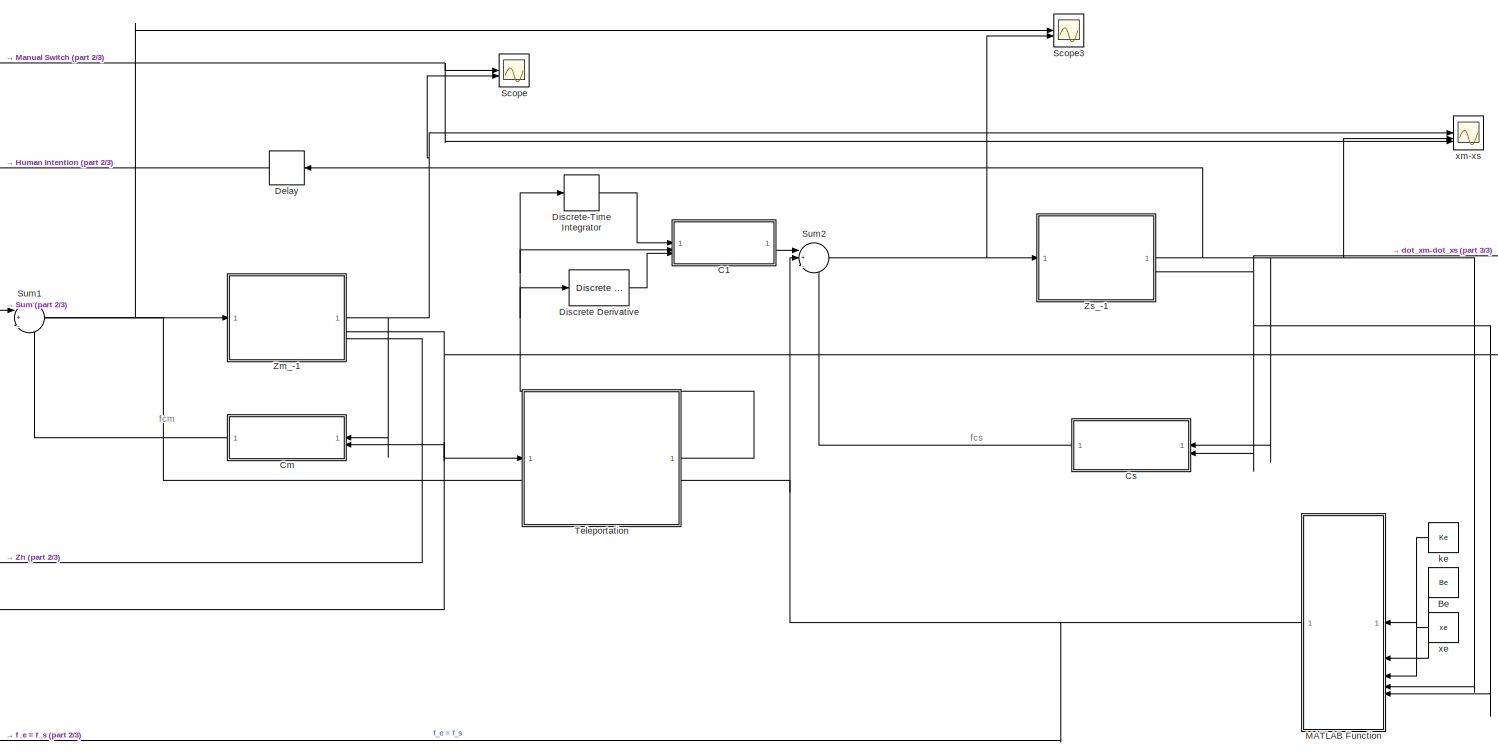
[diagram: root canvas - part 1/3, center side, full height]
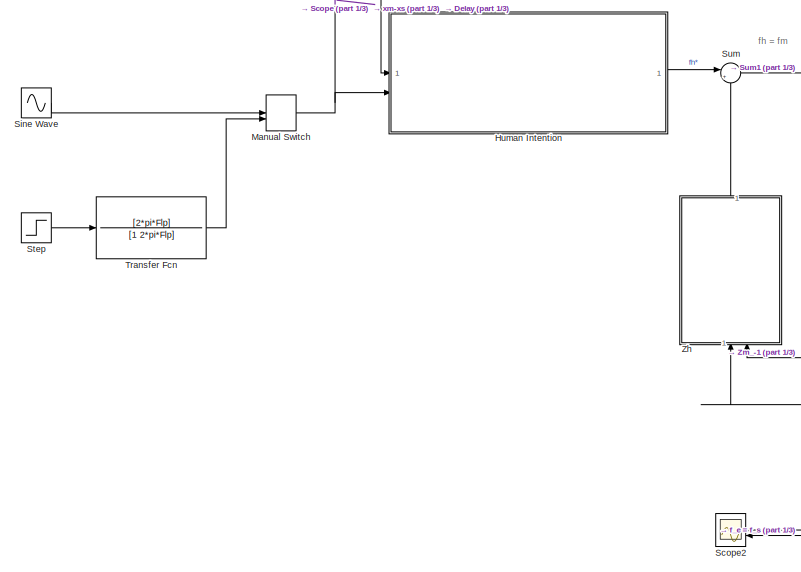
[diagram: root canvas - part 2/3, middle left region]
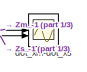
[diagram: root canvas - part 3/3, middle right region]
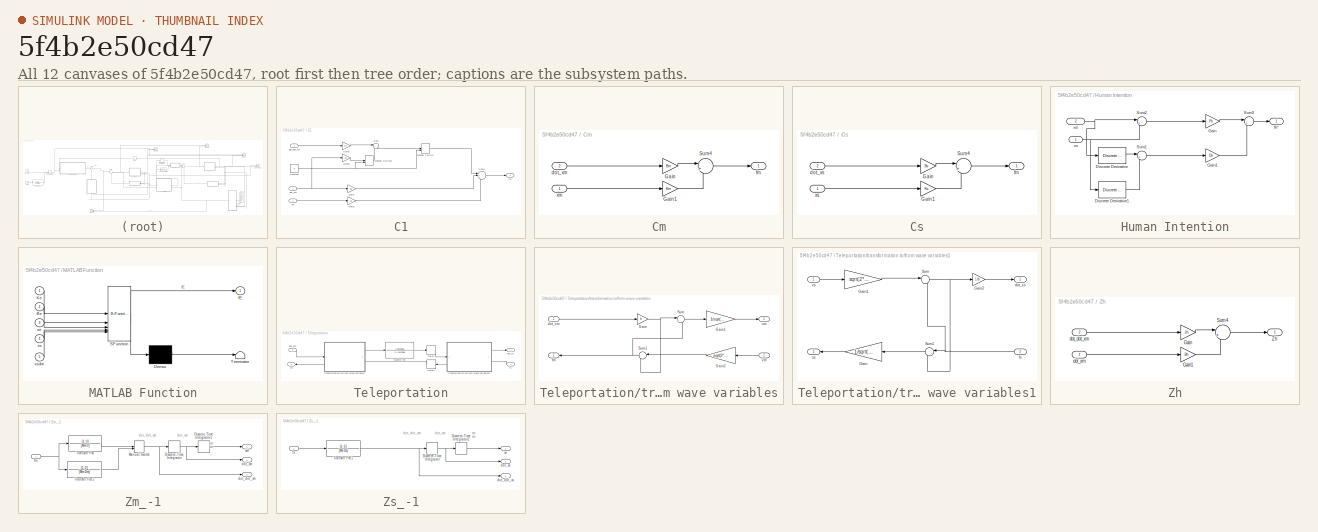
[diagram: thumbnail index - all 12 canvases of the model, root first then tree order]
MODEL slx_5f4b2e50cd47
KIND model
CONFIG AbsTol = auto
CONFIG EnableMultiTasking = off
CONFIG FixedStep = auto
CONFIG MaxStep = auto
CONFIG MinStep = auto
CONFIG RelTol = 1e-3
CONFIG SampleTimeConstraint = Unconstrained
CONFIG SolverName = VariableStepAuto
CONFIG StartTime = 0.0
CONFIG StopTime = 10
BLOCK [Constant] Be
  Value = Be
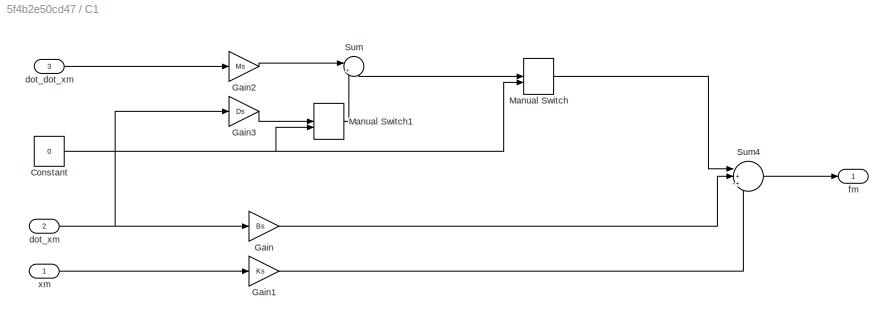
BLOCK [SubSystem] C1
BLOCK [Constant] C1/Constant
  Value = 0
BLOCK [Gain] C1/Gain
  Gain = Bs
BLOCK [Gain] C1/Gain1
  Gain = Ks
BLOCK [Gain] C1/Gain2
  Gain = Ms
BLOCK [Gain] C1/Gain3
  Gain = Ds
BLOCK [ManualSwitch] C1/Manual Switch
  CurrentSetting = 0
BLOCK [ManualSwitch] C1/Manual Switch1
  CurrentSetting = 0
BLOCK [Sum] C1/Sum
  Inputs = |++
BLOCK [Sum] C1/Sum4
  Inputs = |+++
BLOCK [Inport] C1/dot_dot_xm
  Port = 3
BLOCK [Inport] C1/dot_xm
  Port = 2
BLOCK [Outport] C1/fm
BLOCK [Inport] C1/xm
BLOCK [SubSystem] Cm
BLOCK [Gain] Cm/Gain
  Gain = Bm
BLOCK [Gain] Cm/Gain1
  Gain = Km
BLOCK [Sum] Cm/Sum4
  Inputs = |++
BLOCK [Inport] Cm/dot_xm
  Port = 2
BLOCK [Outport] Cm/fm
BLOCK [Inport] Cm/xm
BLOCK [SubSystem] Cs
BLOCK [Gain] Cs/Gain
  Gain = Bs
BLOCK [Gain] Cs/Gain1
  Gain = Ks
BLOCK [Sum] Cs/Sum4
  Inputs = |++
BLOCK [Inport] Cs/dot_xs
  Port = 2
BLOCK [Outport] Cs/fm
BLOCK [Inport] Cs/xs
BLOCK [Delay] Delay
  DelayLength = delay
  InputPortMap = u0
  SampleTime = Ts
BLOCK [Reference] Discrete Derivative  REF=simulink/Discrete/Discrete Derivative
  SourceBlock = simulink/Discrete/Discrete Derivative
  SourceType = Discrete Derivative
BLOCK [DiscreteIntegrator] Discrete-Time Integrator
  ICPrevOutput = DiscIntNeverNeededParam
  ICPrevScaledInput = DiscIntNeverNeededParam
  InitialConditionSetting = Auto
  SampleTime = Ts
BLOCK [SubSystem] Human Intention
BLOCK [Reference] Human Intention/Discrete Derivative  REF=simulink/Discrete/Discrete Derivative
  SourceBlock = simulink/Discrete/Discrete Derivative
  SourceType = Discrete Derivative
BLOCK [Reference] Human Intention/Discrete Derivative1  REF=simulink/Discrete/Discrete Derivative
  SourceBlock = simulink/Discrete/Discrete Derivative
  SourceType = Discrete Derivative
BLOCK [Gain] Human Intention/Gain
  Gain = Ph
BLOCK [Gain] Human Intention/Gain1
  Gain = Dh
BLOCK [Sum] Human Intention/Sum1
  Inputs = |+-
BLOCK [Sum] Human Intention/Sum2
  Inputs = |+-
BLOCK [Sum] Human Intention/Sum3
  Inputs = |++
BLOCK [Outport] Human Intention/fh*
BLOCK [Inport] Human Intention/xd
  Port = 2
BLOCK [Inport] Human Intention/xs
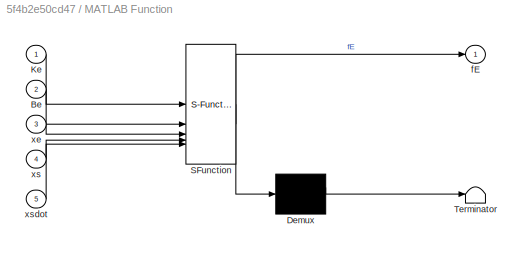
BLOCK [SubSystem] MATLAB Function
  ErrorFcn = Stateflow.Translate.translate
  PermitHierarchicalResolution = ExplicitOnly
  SFBlockType = MATLAB Function
  TreatAsAtomicUnit = on
BLOCK [Demux] MATLAB Function/ Demux 
  Outputs = 1
BLOCK [S-Function] MATLAB Function/ SFunction 
  EnableBusSupport = on
  FunctionName = sf_sfun
  PortCounts = [5 2]
  SFcnIsStateOwnerBlock = off
  SFunctionDeploymentMode = off
  Tag = Stateflow S-Function 2
BLOCK [Terminator] MATLAB Function/ Terminator 
BLOCK [Inport] MATLAB Function/Be
  Port = 2
BLOCK [Inport] MATLAB Function/Ke
BLOCK [Outport] MATLAB Function/fE
BLOCK [Inport] MATLAB Function/xe
  Port = 3
BLOCK [Inport] MATLAB Function/xs
  Port = 4
BLOCK [Inport] MATLAB Function/xsdot
  Port = 5
BLOCK [ManualSwitch] Manual Switch
BLOCK [Scope] Scope
  Floating = off
  NumInputPorts = 2
  ScopeSpecificationString = Simulink.scopes.TimeScopeBlockCfg('CurrentConfiguration', extmgr.ConfigurationSet(extmgr.Configuration('Core','General UI',true),extmgr.Configuration('Core','Source UI',true),extmgr.Configuration('Sources','WiredSimulink',true),extmgr.Configuration('Visuals','Time Domain',true,'SerializedDisplays',{struct('MinYLimReal','-33.14001','MaxYLimReal','31.45996','YLabelReal','','MinYLimMag','0.00000','Ma...<+1513ch>
BLOCK [Scope] Scope2
  Floating = off
  NumInputPorts = 2
  ScopeSpecificationString = Simulink.scopes.TimeScopeBlockCfg('CurrentConfiguration', extmgr.ConfigurationSet(extmgr.Configuration('Core','General UI',true),extmgr.Configuration('Core','Source UI',true),extmgr.Configuration('Sources','WiredSimulink',true,'DataLoggingVariableName','ScopeData2'),extmgr.Configuration('Visuals','Time Domain',true,'SerializedDisplays',{struct('MinYLimReal','-1397.25975','MaxYLimReal','2548.93573'...<+1594ch>
BLOCK [Scope] Scope3
  Floating = off
  NumInputPorts = 2
  ScopeSpecificationString = Simulink.scopes.TimeScopeBlockCfg('CurrentConfiguration', extmgr.ConfigurationSet(extmgr.Configuration('Core','General UI',true),extmgr.Configuration('Core','Source UI',true),extmgr.Configuration('Sources','WiredSimulink',true,'DataLoggingVariableName','ScopeData1'),extmgr.Configuration('Visuals','Time Domain',true,'SerializedDisplays',{struct('MinYLimReal','-20349.54623','MaxYLimReal','7846.10159...<+1574ch>
BLOCK [Sin] Sine Wave
  Amplitude = Amp
  Frequency = 2*pi*Fc
  SampleTime = Ts
BLOCK [Step] Step
  After = Amp
  SampleTime = Ts
  Time = 0.5
BLOCK [Sum] Sum
  Inputs = |+-
BLOCK [Sum] Sum1
  Inputs = |+--
BLOCK [Sum] Sum2
  Inputs = |+--
BLOCK [SubSystem] Teleportation
  PortSchema = {"entries":[{"content":{"sides":[{"content":{"connectorIds":["In1","Out2"]},"type":"ConnectorPlacement.EquallySpacedRectSide","uuid":"b5f7abc7-c75d-4363-a17a-8f86c90608cd"},{"content":{"connectorIds":["Out1","In2"],"side":"RIGHT"},"type":"ConnectorPlacement.EquallySpacedRectSide","uuid":"2ed87bee-e320-4c73-a1d3-1960a55b558d"},{"content":{"connectorIds":[],"side":"TOP"},"type":"ConnectorPlacement.E...<+253ch>  <repeated x3 — deduplicated; at blocks: Teleportation, transformation to/from wave variables, transformation to/from wave variables1>
BLOCK [Delay] Teleportation/Delay
  DelayLength = delay
  InputPortMap = u0
  SampleTime = Ts
BLOCK [Delay] Teleportation/Delay1
  DelayLength = delay
  InputPortMap = u0
  SampleTime = Ts
BLOCK [TransferFcn] Teleportation/Transfer Fcn
  Denominator = [1 lambda]
  Numerator = [lambda]
BLOCK [Inport] Teleportation/dot_xm
BLOCK [Outport] Teleportation/dot_xs
BLOCK [Outport] Teleportation/fm
  Port = 2
BLOCK [Inport] Teleportation/fs
  Port = 2
BLOCK [SubSystem] Teleportation/transformation to//from wave variables
BLOCK [Gain] Teleportation/transformation to//from wave variables/Gain
  Gain = b
BLOCK [Gain] Teleportation/transformation to//from wave variables/Gain1
  Gain = 1/sqrt(2*b)
BLOCK [Gain] Teleportation/transformation to//from wave variables/Gain2
  Gain = sqrt(2*b)
BLOCK [Sum] Teleportation/transformation to//from wave variables/Sum
  Inputs = |++
BLOCK [Sum] Teleportation/transformation to//from wave variables/Sum1
  Inputs = |++
BLOCK [Inport] Teleportation/transformation to//from wave variables/dot_xm
BLOCK [Outport] Teleportation/transformation to//from wave variables/fm
  Port = 2
BLOCK [Outport] Teleportation/transformation to//from wave variables/um
BLOCK [Inport] Teleportation/transformation to//from wave variables/vm
  Port = 2
BLOCK [SubSystem] Teleportation/transformation to//from wave variables1
BLOCK [Gain] Teleportation/transformation to//from wave variables1/Gain
  Gain = 1/sqrt(2*b)
BLOCK [Gain] Teleportation/transformation to//from wave variables1/Gain1
  Gain = sqrt(2*b)
BLOCK [Gain] Teleportation/transformation to//from wave variables1/Gain2
  Gain = 1/b
BLOCK [Sum] Teleportation/transformation to//from wave variables1/Sum
  Inputs = |+-
BLOCK [Sum] Teleportation/transformation to//from wave variables1/Sum1
  Inputs = |+-
BLOCK [Outport] Teleportation/transformation to//from wave variables1/dot_xs
BLOCK [Inport] Teleportation/transformation to//from wave variables1/fs
  Port = 2
BLOCK [Outport] Teleportation/transformation to//from wave variables1/us
  Port = 2
BLOCK [Inport] Teleportation/transformation to//from wave variables1/vs
BLOCK [TransferFcn] Transfer Fcn
  Denominator = [1 2*pi*Flp]
  Numerator = [2*pi*Flp]
BLOCK [SubSystem] Zh
  NameLocation = right
BLOCK [Gain] Zh/Gain
  Gain = Jh
BLOCK [Gain] Zh/Gain1
  Gain = Bh
BLOCK [Sum] Zh/Sum4
  Inputs = |++
BLOCK [Outport] Zh/Zh
BLOCK [Inport] Zh/dot_dot_xm
  Port = 2
BLOCK [Inport] Zh/dot_xm
BLOCK [SubSystem] Zm_-1
BLOCK [DiscreteIntegrator] Zm_-1/Discrete-Time Integrator
  ICPrevOutput = DiscIntNeverNeededParam
  ICPrevScaledInput = DiscIntNeverNeededParam
  InitialConditionSetting = Auto
  SampleTime = Ts
BLOCK [DiscreteIntegrator] Zm_-1/Discrete-Time Integrator1
  ICPrevOutput = DiscIntNeverNeededParam
  ICPrevScaledInput = DiscIntNeverNeededParam
  InitialConditionSetting = Auto
  SampleTime = Ts
BLOCK [ManualSwitch] Zm_-1/Manual Switch
  CurrentSetting = 0
BLOCK [TransferFcn] Zm_-1/Transfer Fcn
  Denominator = [Mm 0]
  Numerator = [1 0]
BLOCK [TransferFcn] Zm_-1/Transfer Fcn1
  Denominator = [Mm Dm]
  Numerator = [1 0]
BLOCK [Outport] Zm_-1/dot_dot_xm
  Port = 3
BLOCK [Outport] Zm_-1/dot_xm
  Port = 2
BLOCK [Inport] Zm_-1/fm
BLOCK [Outport] Zm_-1/xm
BLOCK [SubSystem] Zs_-1
BLOCK [DiscreteIntegrator] Zs_-1/Discrete-Time Integrator
  ICPrevOutput = DiscIntNeverNeededParam
  ICPrevScaledInput = DiscIntNeverNeededParam
  InitialConditionSetting = Auto
  SampleTime = Ts
BLOCK [DiscreteIntegrator] Zs_-1/Discrete-Time Integrator1
  ICPrevOutput = DiscIntNeverNeededParam
  ICPrevScaledInput = DiscIntNeverNeededParam
  InitialConditionSetting = Auto
  SampleTime = Ts
BLOCK [TransferFcn] Zs_-1/Transfer Fcn1
  Denominator = [Ms Ds]
  Numerator = [1 0]
BLOCK [Outport] Zs_-1/dot_dot_xs
  Port = 3
BLOCK [Outport] Zs_-1/dot_xs
  Port = 2
BLOCK [Inport] Zs_-1/fs
BLOCK [Outport] Zs_-1/xs
BLOCK [Scope] dot_xm-dot_xs
  Floating = off
  NumInputPorts = 2
  ScopeSpecificationString = Simulink.scopes.TimeScopeBlockCfg('CurrentConfiguration', extmgr.ConfigurationSet(extmgr.Configuration('Core','General UI',true),extmgr.Configuration('Core','Source UI',true),extmgr.Configuration('Sources','WiredSimulink',true,'DataLoggingVariableName','ScopeData1'),extmgr.Configuration('Visuals','Time Domain',true,'SerializedDisplays',{struct('MinYLimReal','-51.23114','MaxYLimReal','51.43822','YL...<+1600ch>
BLOCK [Constant] ke
  Value = Ke
BLOCK [Constant] xe
  Value = xe
BLOCK [Scope] xm-xs
  Floating = off
  NumInputPorts = 3
  ScopeSpecificationString = Simulink.scopes.TimeScopeBlockCfg('CurrentConfiguration', extmgr.ConfigurationSet(extmgr.Configuration('Core','General UI',true),extmgr.Configuration('Core','Source UI',true),extmgr.Configuration('Sources','WiredSimulink',true,'DataLoggingVariableName','ScopeData1'),extmgr.Configuration('Visuals','Time Domain',true,'SerializedDisplays',{struct('MinYLimReal','-18.75','MaxYLimReal','18.75','YLabelRe...<+1737ch>
ANNOTATION (root): fcm
ANNOTATION (root): fcs
ANNOTATION (root): fh = fm
ANNOTATION Zm_-1: dot_dot_xm
ANNOTATION Zm_-1: dot_xm
ANNOTATION Zm_-1: xm xm
ANNOTATION Zs_-1: dot_dot_xm
ANNOTATION Zs_-1: dot_xm
ANNOTATION Zs_-1: xm xm
LINE Be:1 -> MATLAB Function:2
NET C1/Constant:1 -> C1/Manual Switch1:2, C1/Manual Switch:2
LINE C1/Gain1:1 -> C1/Sum4:3
LINE C1/Gain2:1 -> C1/Sum:1
LINE C1/Gain3:1 -> C1/Manual Switch1:1
LINE C1/Gain:1 -> C1/Sum4:2
LINE C1/Manual Switch1:1 -> C1/Sum:2
LINE C1/Manual Switch:1 -> C1/Sum4:1
LINE C1/Sum4:1 -> C1/fm:1
LINE C1/Sum:1 -> C1/Manual Switch:1
LINE C1/dot_dot_xm:1 -> C1/Gain2:1
NET C1/dot_xm:1 -> C1/Gain3:1, C1/Gain:1
LINE C1/xm:1 -> C1/Gain1:1
LINE C1:1 -> Sum2:1
LINE Cm/Gain1:1 -> Cm/Sum4:2
LINE Cm/Gain:1 -> Cm/Sum4:1
LINE Cm/Sum4:1 -> Cm/fm:1
LINE Cm/dot_xm:1 -> Cm/Gain:1
LINE Cm/xm:1 -> Cm/Gain1:1
LINE Cm:1 -> Sum1:3
LINE Cs/Gain1:1 -> Cs/Sum4:2
LINE Cs/Gain:1 -> Cs/Sum4:1
LINE Cs/Sum4:1 -> Cs/fm:1
LINE Cs/dot_xs:1 -> Cs/Gain:1
LINE Cs/xs:1 -> Cs/Gain1:1
LINE Cs:1 -> Sum2:3
LINE Delay:1 -> Human Intention:1
LINE Discrete Derivative:1 -> C1:3
LINE Discrete-Time Integrator:1 -> C1:1
LINE Human Intention/Discrete Derivative1:1 -> Human Intention/Sum1:2
LINE Human Intention/Discrete Derivative:1 -> Human Intention/Sum1:1
LINE Human Intention/Gain1:1 -> Human Intention/Sum3:2
LINE Human Intention/Gain:1 -> Human Intention/Sum3:1
LINE Human Intention/Sum1:1 -> Human Intention/Gain1:1
LINE Human Intention/Sum2:1 -> Human Intention/Gain:1
LINE Human Intention/Sum3:1 -> Human Intention/fh*:1
NET Human Intention/xd:1 -> Human Intention/Discrete Derivative:1, Human Intention/Sum2:1
NET Human Intention/xs:1 -> Human Intention/Discrete Derivative1:1, Human Intention/Sum2:2
LINE Human Intention:1 -> Sum:1
NET MATLAB Function:1 -> Scope2:2, Sum2:2, Teleportation:2
NET Manual Switch:1 -> Human Intention:2, Scope:1, xm-xs:3
LINE Sine Wave:1 -> Manual Switch:1
LINE Step:1 -> Transfer Fcn:1
NET Sum1:1 -> Scope3:1, Zm_-1:1
NET Sum2:1 -> Scope3:2, Zs_-1:1
NET Sum:1 -> Scope2:1, Sum1:1
LINE Teleportation/Delay1:1 -> Teleportation/transformation to//from wave variables:2
LINE Teleportation/Delay:1 -> Teleportation/transformation to//from wave variables1:1
LINE Teleportation/Transfer Fcn:1 -> Teleportation/Delay:1
LINE Teleportation/dot_xm:1 -> Teleportation/transformation to//from wave variables:1
LINE Teleportation/fs:1 -> Teleportation/transformation to//from wave variables1:2
LINE Teleportation/transformation to//from wave variables/Gain1:1 -> Teleportation/transformation to//from wave variables/um:1
LINE Teleportation/transformation to//from wave variables/Gain2:1 -> Teleportation/transformation to//from wave variables/Sum1:1
NET Teleportation/transformation to//from wave variables/Gain:1 -> Teleportation/transformation to//from wave variables/Sum1:2, Teleportation/transformation to//from wave variables/Sum:1
NET Teleportation/transformation to//from wave variables/Sum1:1 -> Teleportation/transformation to//from wave variables/Sum:2, Teleportation/transformation to//from wave variables/fm:1
LINE Teleportation/transformation to//from wave variables/Sum:1 -> Teleportation/transformation to//from wave variables/Gain1:1
LINE Teleportation/transformation to//from wave variables/dot_xm:1 -> Teleportation/transformation to//from wave variables/Gain:1
LINE Teleportation/transformation to//from wave variables/vm:1 -> Teleportation/transformation to//from wave variables/Gain2:1
LINE Teleportation/transformation to//from wave variables1/Gain1:1 -> Teleportation/transformation to//from wave variables1/Sum:1
LINE Teleportation/transformation to//from wave variables1/Gain2:1 -> Teleportation/transformation to//from wave variables1/dot_xs:1
LINE Teleportation/transformation to//from wave variables1/Gain:1 -> Teleportation/transformation to//from wave variables1/us:1
LINE Teleportation/transformation to//from wave variables1/Sum1:1 -> Teleportation/transformation to//from wave variables1/Gain:1
NET Teleportation/transformation to//from wave variables1/Sum:1 -> Teleportation/transformation to//from wave variables1/Gain2:1, Teleportation/transformation to//from wave variables1/Sum1:2
NET Teleportation/transformation to//from wave variables1/fs:1 -> Teleportation/transformation to//from wave variables1/Sum1:1, Teleportation/transformation to//from wave variables1/Sum:2
LINE Teleportation/transformation to//from wave variables1/vs:1 -> Teleportation/transformation to//from wave variables1/Gain1:1
LINE Teleportation/transformation to//from wave variables1:1 -> Teleportation/dot_xs:1
LINE Teleportation/transformation to//from wave variables1:2 -> Teleportation/Delay1:1
LINE Teleportation/transformation to//from wave variables:1 -> Teleportation/Transfer Fcn:1
LINE Teleportation/transformation to//from wave variables:2 -> Teleportation/fm:1
NET Teleportation:1 -> C1:2, Discrete Derivative:1, Discrete-Time Integrator:1
LINE Teleportation:2 -> Sum1:2
LINE Transfer Fcn:1 -> Manual Switch:2
LINE Zh/Gain1:1 -> Zh/Sum4:2
LINE Zh/Gain:1 -> Zh/Sum4:1
LINE Zh/Sum4:1 -> Zh/Zh:1
LINE Zh/dot_dot_xm:1 -> Zh/Gain:1
LINE Zh/dot_xm:1 -> Zh/Gain1:1
LINE Zh:1 -> Sum:2
LINE Zm_-1/Discrete-Time Integrator1:1 -> Zm_-1/xm:1
NET Zm_-1/Discrete-Time Integrator:1 -> Zm_-1/Discrete-Time Integrator1:1, Zm_-1/dot_xm:1
NET Zm_-1/Manual Switch:1 -> Zm_-1/Discrete-Time Integrator:1, Zm_-1/dot_dot_xm:1
LINE Zm_-1/Transfer Fcn1:1 -> Zm_-1/Manual Switch:2
LINE Zm_-1/Transfer Fcn:1 -> Zm_-1/Manual Switch:1
NET Zm_-1/fm:1 -> Zm_-1/Transfer Fcn1:1, Zm_-1/Transfer Fcn:1
NET Zm_-1:1 -> Cm:1, Scope:2, xm-xs:1
NET Zm_-1:2 -> Cm:2, Teleportation:1, Zh:1, dot_xm-dot_xs:1
LINE Zm_-1:3 -> Zh:2
LINE Zs_-1/Discrete-Time Integrator1:1 -> Zs_-1/xs:1
NET Zs_-1/Discrete-Time Integrator:1 -> Zs_-1/Discrete-Time Integrator1:1, Zs_-1/dot_xs:1
NET Zs_-1/Transfer Fcn1:1 -> Zs_-1/Discrete-Time Integrator:1, Zs_-1/dot_dot_xs:1
LINE Zs_-1/fs:1 -> Zs_-1/Transfer Fcn1:1
NET Zs_-1:1 -> Cs:1, Delay:1, MATLAB Function:4, xm-xs:2
NET Zs_-1:2 -> Cs:2, MATLAB Function:5, dot_xm-dot_xs:2
LINE ke:1 -> MATLAB Function:1
LINE xe:1 -> MATLAB Function:3
note: NET lines group one-source signal fan-out (src -> all destinations, sorted); 1:1 wires keep LINE
CHART MATLAB Function states=1 transitions=1
  STATE_LABEL 'eML_blk_kernel()'
  STATE_LABEL 'SCRIPT:\nfunction fE = environment(Ke, Be, xe, xs, xsdot)\n    if xs > xe\n        fE = Ke * (xs - xe) + Be * xsdot; % Plot both contributions Ke and Be\n    else\n        fE = 0;\n    end\nend\n'
CHART  states=0 transitions=0
